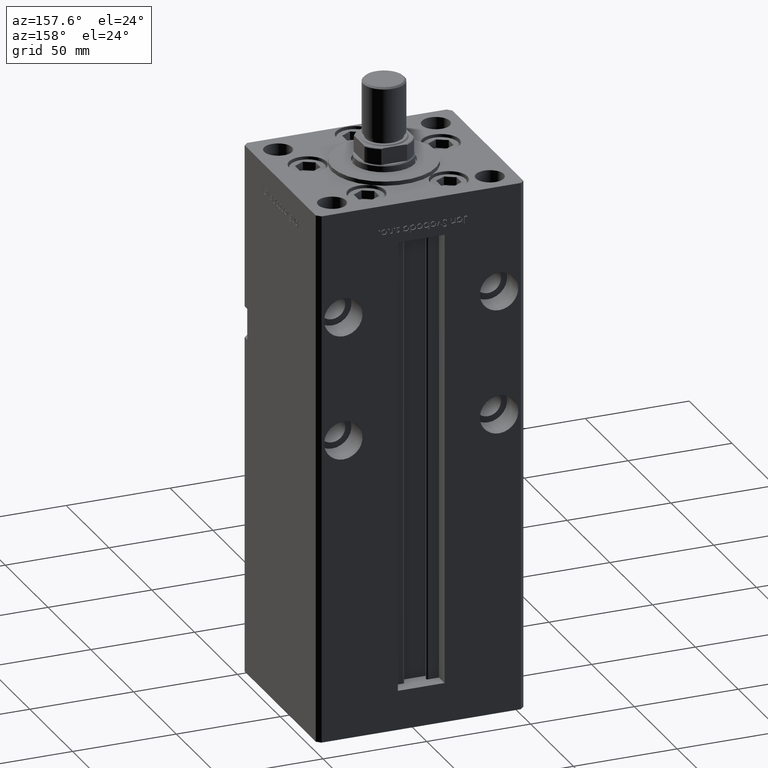
[diagram: clean part render]
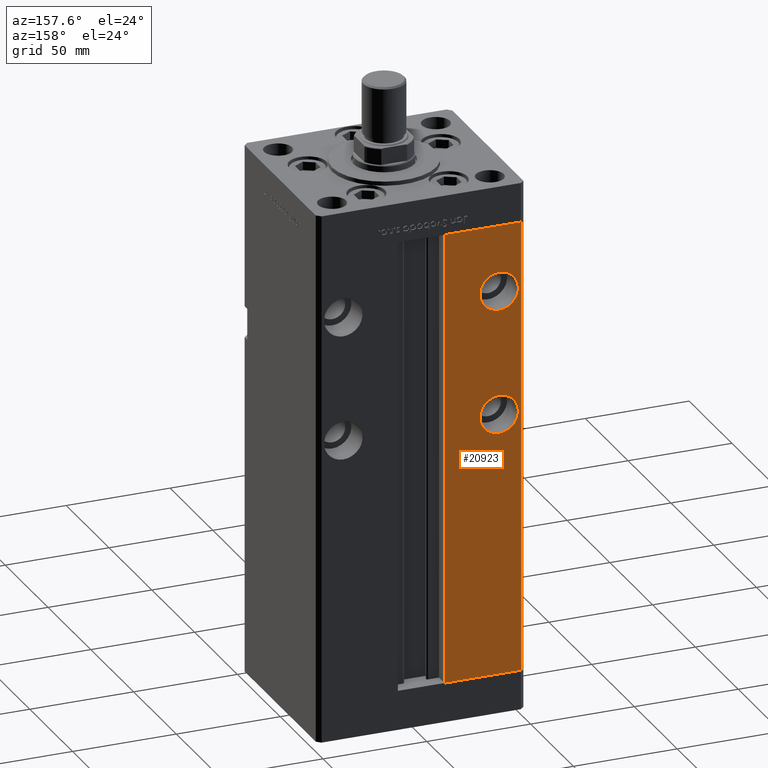
[diagram: same view with one face highlighted and labeled with its STEP entity id]
A machine part, auxiliary view. The second image highlights one B-rep face of the part: STEP entity #20923.
In plain terms, the highlighted planar face has unit normal (0, -1, 0).
Its self-contained STEP definition (entity closure, byte-faithful):
#689 = EDGE_CURVE ( 'NONE', #40317, #26888, #39023, .T. ) ;
#1003 = CARTESIAN_POINT ( 'NONE',  ( -37.50000000000000000, 43.50000000000000000, 177.2500000000000000 ) ) ;
#1234 = CARTESIAN_POINT ( 'NONE',  ( -37.50000000000000000, 43.50000000000000000, 117.2500000000000000 ) ) ;
#1881 = DIRECTION ( 'NONE',  ( 0.000000000000000000, 1.000000000000000000, 0.000000000000000000 ) ) ;
#1923 = CARTESIAN_POINT ( 'NONE',  ( -37.50000000000000000, 43.50000000000000000, 195.7500000000000000 ) ) ;
#2202 = DIRECTION ( 'NONE',  ( 0.000000000000000000, 0.000000000000000000, -1.000000000000000000 ) ) ;
#4158 = VERTEX_POINT ( 'NONE', #18237 ) ;
#4643 = DIRECTION ( 'NONE',  ( 0.000000000000000000, 1.000000000000000000, -0.000000000000000000 ) ) ;
#4677 = ORIENTED_EDGE ( 'NONE', *, *, #19778, .T. ) ;
#6317 = CARTESIAN_POINT ( 'NONE',  ( -48.00000000000000711, 43.50000000000000000, 0.000000000000000000 ) ) ;
#6477 = EDGE_CURVE ( 'NONE', #21116, #20489, #51195, .T. ) ;
#6990 = FACE_BOUND ( 'NONE', #24587, .T. ) ;
#8370 = EDGE_CURVE ( 'NONE', #20489, #21116, #50345, .T. ) ;
#8471 = ORIENTED_EDGE ( 'NONE', *, *, #53505, .F. ) ;
#8496 = VERTEX_POINT ( 'NONE', #6317 ) ;
#8896 = EDGE_CURVE ( 'NONE', #4158, #8496, #12880, .T. ) ;
#10462 = VECTOR ( 'NONE', #15784, 1000.000000000000000 ) ;
#10496 = AXIS2_PLACEMENT_3D ( 'NONE', #49907, #4643, #17397 ) ;
#10802 = PLANE ( 'NONE',  #48478 ) ;
#10833 = CARTESIAN_POINT ( 'NONE',  ( -11.24999999999999645, 43.50000000000000000, 0.000000000000000000 ) ) ;
#11057 = CARTESIAN_POINT ( 'NONE',  ( -11.24999999999999645, 43.50000000000000000, 218.5000000000000000 ) ) ;
#11960 = LINE ( 'NONE', #53442, #10462 ) ;
#12880 = LINE ( 'NONE', #38357, #25281 ) ;
#13089 = VECTOR ( 'NONE', #14623, 1000.000000000000000 ) ;
#13857 = CARTESIAN_POINT ( 'NONE',  ( -37.50000000000000000, 43.50000000000000000, 186.5000000000000000 ) ) ;
#13898 = EDGE_LOOP ( 'NONE', ( #4677, #48386, #53328, #28781 ) ) ;
#14623 = DIRECTION ( 'NONE',  ( -0.000000000000000000, -0.000000000000000000, 1.000000000000000000 ) ) ;
#15679 = AXIS2_PLACEMENT_3D ( 'NONE', #39018, #1881, #23024 ) ;
#15713 = CIRCLE ( 'NONE', #32190, 9.250000000000008882 ) ;
#15784 = DIRECTION ( 'NONE',  ( -0.000000000000000000, -0.000000000000000000, -1.000000000000000000 ) ) ;
#16476 = VECTOR ( 'NONE', #44178, 1000.000000000000000 ) ;
#17397 = DIRECTION ( 'NONE',  ( 0.000000000000000000, 0.000000000000000000, -1.000000000000000000 ) ) ;
#18237 = CARTESIAN_POINT ( 'NONE',  ( -11.24999999999999645, 43.50000000000000000, 0.000000000000000000 ) ) ;
#19727 = ORIENTED_EDGE ( 'NONE', *, *, #689, .F. ) ;
#19778 = EDGE_CURVE ( 'NONE', #36725, #38508, #53136, .T. ) ;
#20489 = VERTEX_POINT ( 'NONE', #1923 ) ;
#20923 = ADVANCED_FACE ( 'NONE', ( #36552, #6990, #23260 ), #10802, .F. ) ;
#21116 = VERTEX_POINT ( 'NONE', #1003 ) ;
#23024 = DIRECTION ( 'NONE',  ( 0.000000000000000000, 0.000000000000000000, 1.000000000000000000 ) ) ;
#23260 = FACE_OUTER_BOUND ( 'NONE', #13898, .T. ) ;
#24057 = EDGE_CURVE ( 'NONE', #4158, #38508, #51748, .T. ) ;
#24526 = CARTESIAN_POINT ( 'NONE',  ( -11.24999999999999645, 43.50000000000000000, 218.5000000000000000 ) ) ;
#24587 = EDGE_LOOP ( 'NONE', ( #19727, #8471 ) ) ;
#24793 = DIRECTION ( 'NONE',  ( 0.000000000000000000, 0.000000000000000000, 1.000000000000000000 ) ) ;
#25281 = VECTOR ( 'NONE', #38079, 1000.000000000000000 ) ;
#26888 = VERTEX_POINT ( 'NONE', #1234 ) ;
#26993 = AXIS2_PLACEMENT_3D ( 'NONE', #13857, #51520, #2202 ) ;
#27339 = DIRECTION ( 'NONE',  ( 0.000000000000000000, -0.000000000000000000, -1.000000000000000000 ) ) ;
#28781 = ORIENTED_EDGE ( 'NONE', *, *, #51901, .F. ) ;
#28815 = CARTESIAN_POINT ( 'NONE',  ( -37.50000000000000000, 43.50000000000000000, 135.7500000000000000 ) ) ;
#29576 = CARTESIAN_POINT ( 'NONE',  ( -48.00000000000000711, 43.50000000000000000, 218.5000000000000000 ) ) ;
#32190 = AXIS2_PLACEMENT_3D ( 'NONE', #36191, #52714, #24793 ) ;
#36191 = CARTESIAN_POINT ( 'NONE',  ( -37.50000000000000000, 43.50000000000000000, 126.5000000000000000 ) ) ;
#36552 = FACE_BOUND ( 'NONE', #45751, .T. ) ;
#36725 = VERTEX_POINT ( 'NONE', #29576 ) ;
#38079 = DIRECTION ( 'NONE',  ( -1.000000000000000000, 0.000000000000000000, 0.000000000000000000 ) ) ;
#38357 = CARTESIAN_POINT ( 'NONE',  ( -11.24999999999999645, 43.50000000000000000, 0.000000000000000000 ) ) ;
#38508 = VERTEX_POINT ( 'NONE', #24526 ) ;
#39018 = CARTESIAN_POINT ( 'NONE',  ( -37.50000000000000000, 43.50000000000000000, 126.5000000000000000 ) ) ;
#39023 = CIRCLE ( 'NONE', #15679, 9.250000000000008882 ) ;
#40317 = VERTEX_POINT ( 'NONE', #28815 ) ;
#40656 = CARTESIAN_POINT ( 'NONE',  ( -11.24999999999999645, 43.50000000000000000, 218.5000000000000000 ) ) ;
#41826 = ORIENTED_EDGE ( 'NONE', *, *, #8370, .F. ) ;
#43632 = ORIENTED_EDGE ( 'NONE', *, *, #6477, .F. ) ;
#44178 = DIRECTION ( 'NONE',  ( 1.000000000000000000, 0.000000000000000000, 0.000000000000000000 ) ) ;
#44406 = DIRECTION ( 'NONE',  ( 0.000000000000000000, -1.000000000000000000, 0.000000000000000000 ) ) ;
#45751 = EDGE_LOOP ( 'NONE', ( #41826, #43632 ) ) ;
#48386 = ORIENTED_EDGE ( 'NONE', *, *, #24057, .F. ) ;
#48478 = AXIS2_PLACEMENT_3D ( 'NONE', #11057, #44406, #27339 ) ;
#49907 = CARTESIAN_POINT ( 'NONE',  ( -37.50000000000000000, 43.50000000000000000, 186.5000000000000000 ) ) ;
#50345 = CIRCLE ( 'NONE', #26993, 9.250000000000008882 ) ;
#51195 = CIRCLE ( 'NONE', #10496, 9.250000000000008882 ) ;
#51520 = DIRECTION ( 'NONE',  ( 0.000000000000000000, 1.000000000000000000, -0.000000000000000000 ) ) ;
#51748 = LINE ( 'NONE', #10833, #13089 ) ;
#51901 = EDGE_CURVE ( 'NONE', #36725, #8496, #11960, .T. ) ;
#52714 = DIRECTION ( 'NONE',  ( 0.000000000000000000, 1.000000000000000000, 0.000000000000000000 ) ) ;
#53136 = LINE ( 'NONE', #40656, #16476 ) ;
#53328 = ORIENTED_EDGE ( 'NONE', *, *, #8896, .T. ) ;
#53442 = CARTESIAN_POINT ( 'NONE',  ( -48.00000000000000711, 43.50000000000000000, 218.5000000000000000 ) ) ;
#53505 = EDGE_CURVE ( 'NONE', #26888, #40317, #15713, .T. ) ;